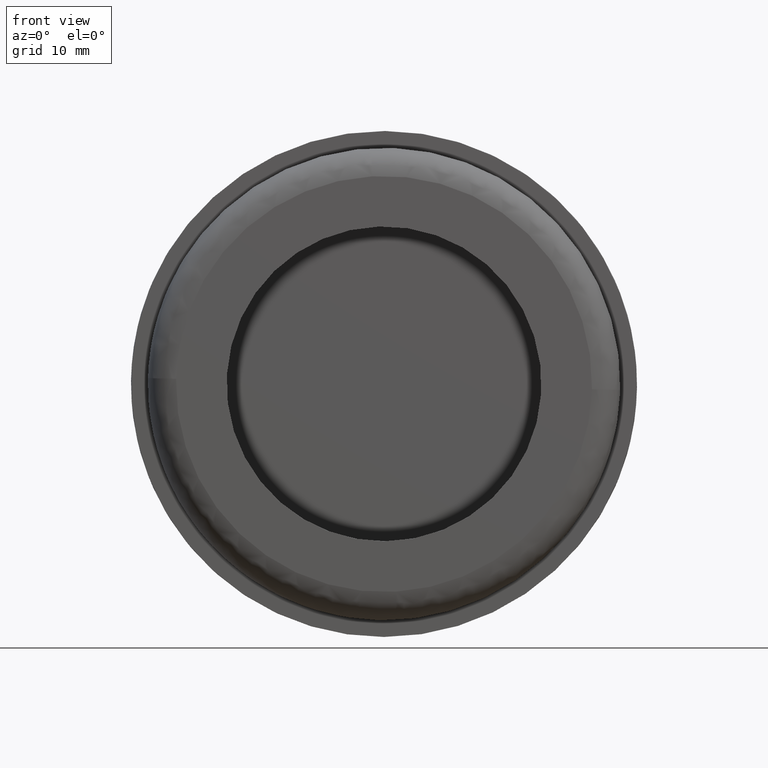
[diagram: clean part render]
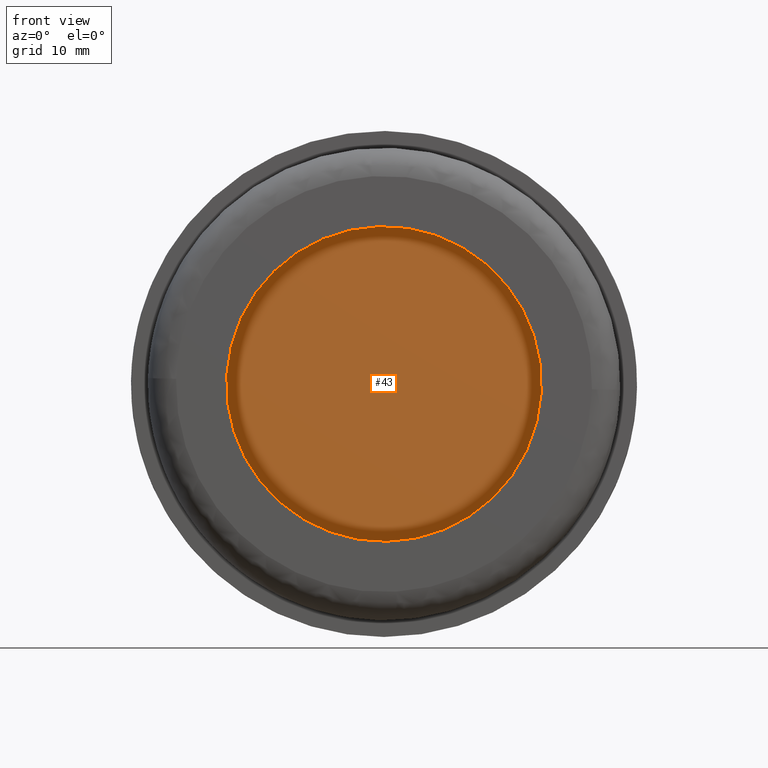
[diagram: same view with one face highlighted and labeled with its STEP entity id]
A machine part, front view. The second image highlights one B-rep face of the part: STEP entity #43.
In plain terms, the highlighted planar face has unit normal (0, 1, 0).
Its self-contained STEP definition (entity closure, byte-faithful):
#43=ADVANCED_FACE('',(#100),#99,.F.);
#99=PLANE('',#362);
#100=FACE_OUTER_BOUND('',#363,.T.);
#359=CARTESIAN_POINT('',(-1.97944254383E+001,1.18000000000E+001,-2.81895064125E+001));
#360=DIRECTION('',(0.00000000000E+000,1.00000000000E+000,0.00000000000E+000));
#361=DIRECTION('',(0.00000000000E+000,0.00000000000E+000,1.00000000000E+000));
#362=AXIS2_PLACEMENT_3D('',#359,#360,#361);
#363=EDGE_LOOP('',(#665,#666));
#665=ORIENTED_EDGE('',*,*,#821,.T.);
#666=ORIENTED_EDGE('',*,*,#822,.T.);
#821=EDGE_CURVE('',#989,#990,#991,.T.);
#822=EDGE_CURVE('',#990,#989,#997,.T.);
#989=VERTEX_POINT('',#1524);
#990=VERTEX_POINT('',#1525);
#991=CIRCLE('',#1529,1.40000000000E+001);
#997=CIRCLE('',#1533,1.40000000000E+001);
#1524=CARTESIAN_POINT('',(-1.39738875513E+001,1.18000000000E+001,8.54673449164E-001));
#1525=CARTESIAN_POINT('',(1.39738875513E+001,1.18000000000E+001,-8.54673449166E-001));
#1526=CARTESIAN_POINT('',(-2.58459920133E-013,1.18000000000E+001,-1.15107923193E-012));
#1527=DIRECTION('',(-8.97195690676E-016,-1.00000000000E+000,-1.01506105109E-015));
#1528=DIRECTION('',(-9.98134825090E-001,8.33554711667E-016,6.10481035118E-002));
#1529=AXIS2_PLACEMENT_3D('',#1526,#1527,#1528);
#1530=CARTESIAN_POINT('',(-2.58459920133E-013,1.18000000000E+001,-1.15107923193E-012));
#1531=DIRECTION('',(-8.97195690676E-016,-1.00000000000E+000,-1.01506105109E-015));
#1532=DIRECTION('',(-9.98134825090E-001,8.33554711667E-016,6.10481035118E-002));
#1533=AXIS2_PLACEMENT_3D('',#1530,#1531,#1532);